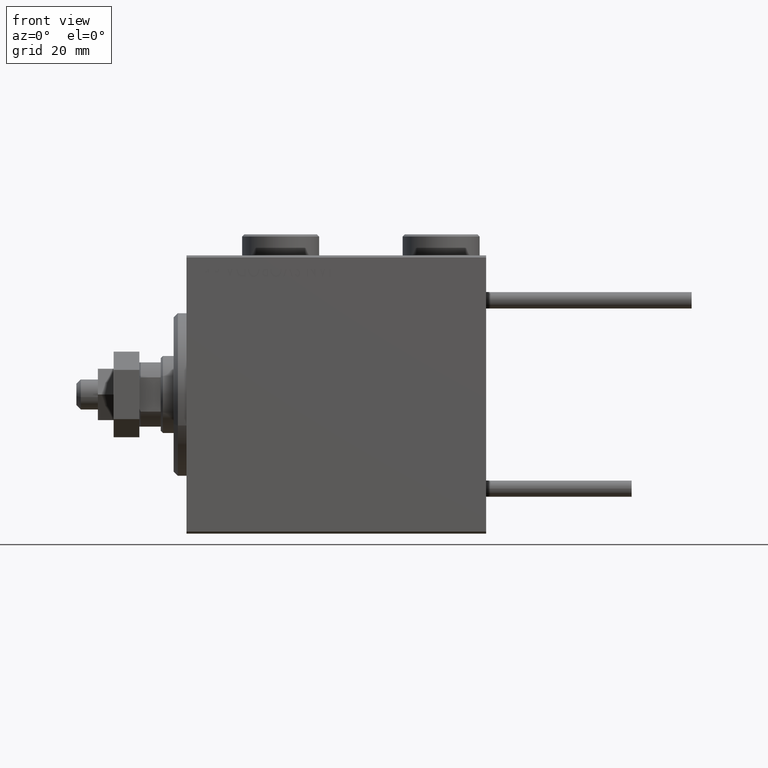
[diagram: clean part render]
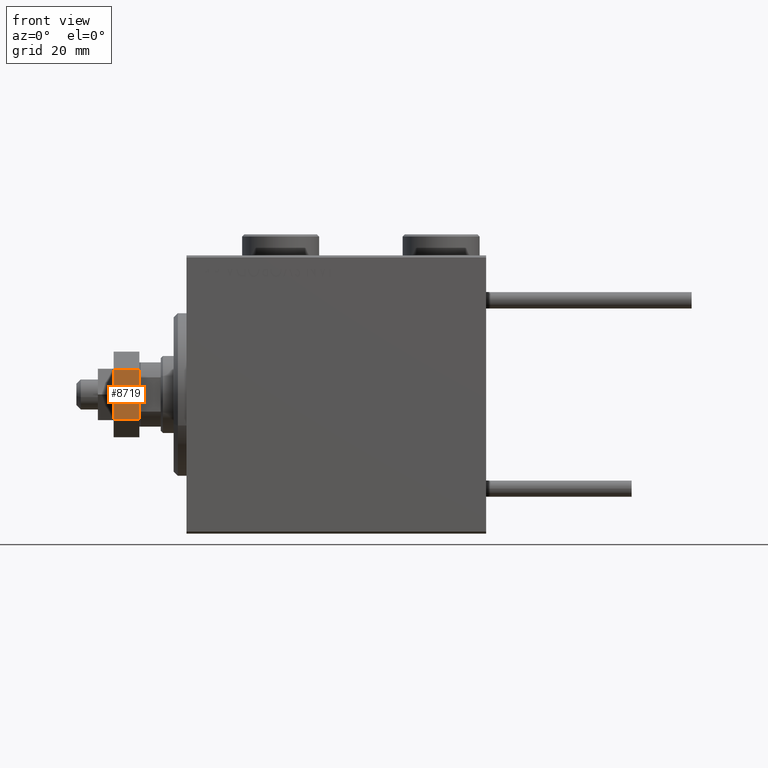
[diagram: same view with one face highlighted and labeled with its STEP entity id]
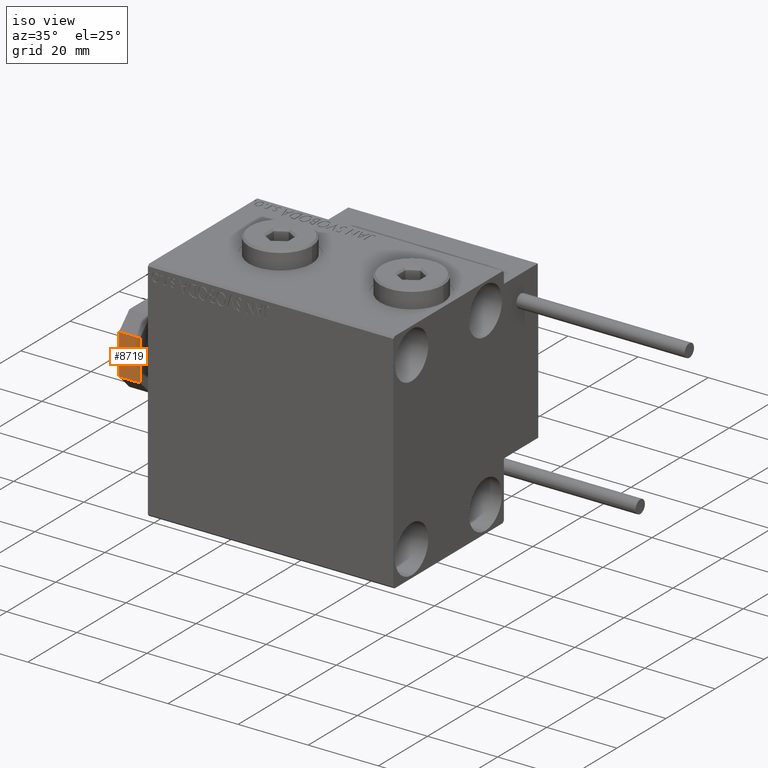
[diagram: same view with one face highlighted and labeled with its STEP entity id]
A machine part, front view. The second image highlights one B-rep face of the part: STEP entity #8719.
A second angle (iso view) of the same face is appended — the face is thin or edge-on in the first view.
In plain terms, the highlighted planar face has unit normal (0, 1, 0).
Its self-contained STEP definition (entity closure, byte-faithful):
#725 = ORIENTED_EDGE ( 'NONE', *, *, #22986, .T. ) ;
#1556 = FACE_OUTER_BOUND ( 'NONE', #38279, .T. ) ;
#1848 = LINE ( 'NONE', #11120, #15303 ) ;
#2023 = ORIENTED_EDGE ( 'NONE', *, *, #50190, .F. ) ;
#2467 = CARTESIAN_POINT ( 'NONE',  ( -5.759999999999997122, 0.000000000000000000, 0.000000000000000000 ) ) ;
#5996 = DIRECTION ( 'NONE',  ( 1.000000000000000000, 0.000000000000000000, 0.000000000000000000 ) ) ;
#8719 = ADVANCED_FACE ( 'NONE', ( #1556 ), #36473, .F. ) ;
#11120 = CARTESIAN_POINT ( 'NONE',  ( -5.759999999999997122, 0.000000000000000000, 6.000000000000000000 ) ) ;
#11845 = DIRECTION ( 'NONE',  ( 1.000000000000000000, 0.000000000000000000, 0.000000000000000000 ) ) ;
#12494 = DIRECTION ( 'NONE',  ( 0.000000000000000000, 1.000000000000000000, 0.000000000000000000 ) ) ;
#12876 = LINE ( 'NONE', #15999, #32147 ) ;
#13010 = CARTESIAN_POINT ( 'NONE',  ( -10.00000000000000533, 0.000000000000000000, 6.000000000000000000 ) ) ;
#13565 = DIRECTION ( 'NONE',  ( 0.000000000000000000, 0.000000000000000000, -1.000000000000000000 ) ) ;
#14889 = CARTESIAN_POINT ( 'NONE',  ( 5.759999999999998010, 0.000000000000000000, 6.000000000000000000 ) ) ;
#15303 = VECTOR ( 'NONE', #13565, 1000.000000000000000 ) ;
#15742 = ORIENTED_EDGE ( 'NONE', *, *, #20836, .T. ) ;
#15999 = CARTESIAN_POINT ( 'NONE',  ( -10.00000000000000533, 0.000000000000000000, 6.000000000000000000 ) ) ;
#18070 = EDGE_CURVE ( 'NONE', #32263, #46375, #51481, .T. ) ;
#19138 = VERTEX_POINT ( 'NONE', #35119 ) ;
#19264 = VECTOR ( 'NONE', #23551, 1000.000000000000000 ) ;
#20836 = EDGE_CURVE ( 'NONE', #39126, #32263, #48922, .T. ) ;
#21547 = AXIS2_PLACEMENT_3D ( 'NONE', #13010, #12494, #45329 ) ;
#22986 = EDGE_CURVE ( 'NONE', #19138, #39126, #1848, .T. ) ;
#23551 = DIRECTION ( 'NONE',  ( 0.000000000000000000, 0.000000000000000000, 1.000000000000000000 ) ) ;
#25016 = ORIENTED_EDGE ( 'NONE', *, *, #18070, .T. ) ;
#31115 = CARTESIAN_POINT ( 'NONE',  ( 5.759999999999998010, 0.000000000000000000, 6.000000000000000000 ) ) ;
#32147 = VECTOR ( 'NONE', #11845, 1000.000000000000000 ) ;
#32263 = VERTEX_POINT ( 'NONE', #50521 ) ;
#35119 = CARTESIAN_POINT ( 'NONE',  ( -5.759999999999997122, 0.000000000000000000, 6.000000000000000000 ) ) ;
#36473 = PLANE ( 'NONE',  #21547 ) ;
#38279 = EDGE_LOOP ( 'NONE', ( #2023, #725, #15742, #25016 ) ) ;
#39126 = VERTEX_POINT ( 'NONE', #2467 ) ;
#41684 = CARTESIAN_POINT ( 'NONE',  ( -10.00000000000000533, 0.000000000000000000, 0.000000000000000000 ) ) ;
#45329 = DIRECTION ( 'NONE',  ( 0.000000000000000000, -0.000000000000000000, 1.000000000000000000 ) ) ;
#46375 = VERTEX_POINT ( 'NONE', #14889 ) ;
#48533 = VECTOR ( 'NONE', #5996, 1000.000000000000000 ) ;
#48922 = LINE ( 'NONE', #41684, #48533 ) ;
#50190 = EDGE_CURVE ( 'NONE', #19138, #46375, #12876, .T. ) ;
#50521 = CARTESIAN_POINT ( 'NONE',  ( 5.759999999999998010, 0.000000000000000000, 0.000000000000000000 ) ) ;
#51481 = LINE ( 'NONE', #31115, #19264 ) ;